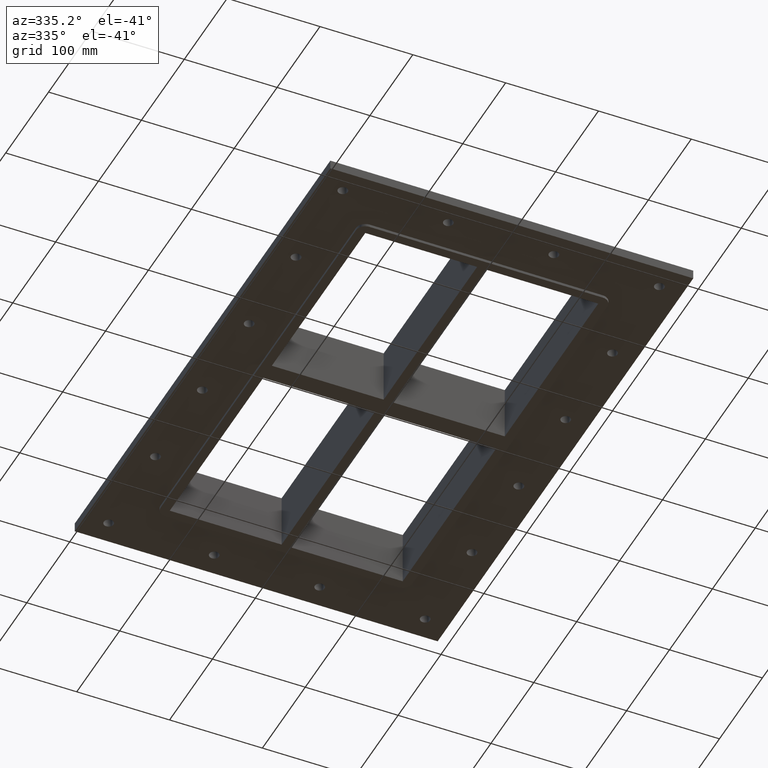
[diagram: clean part render]
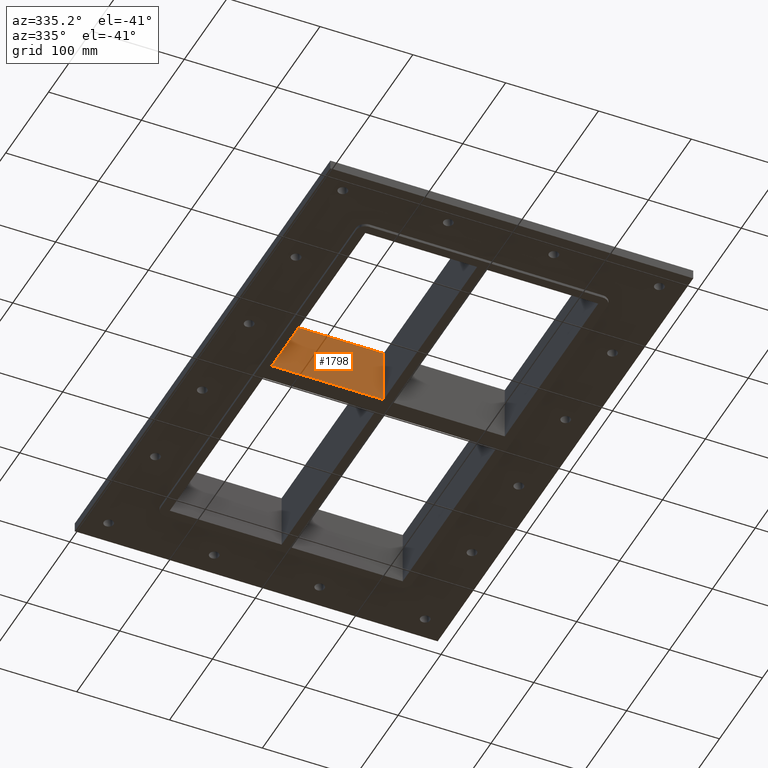
[diagram: same view with one face highlighted and labeled with its STEP entity id]
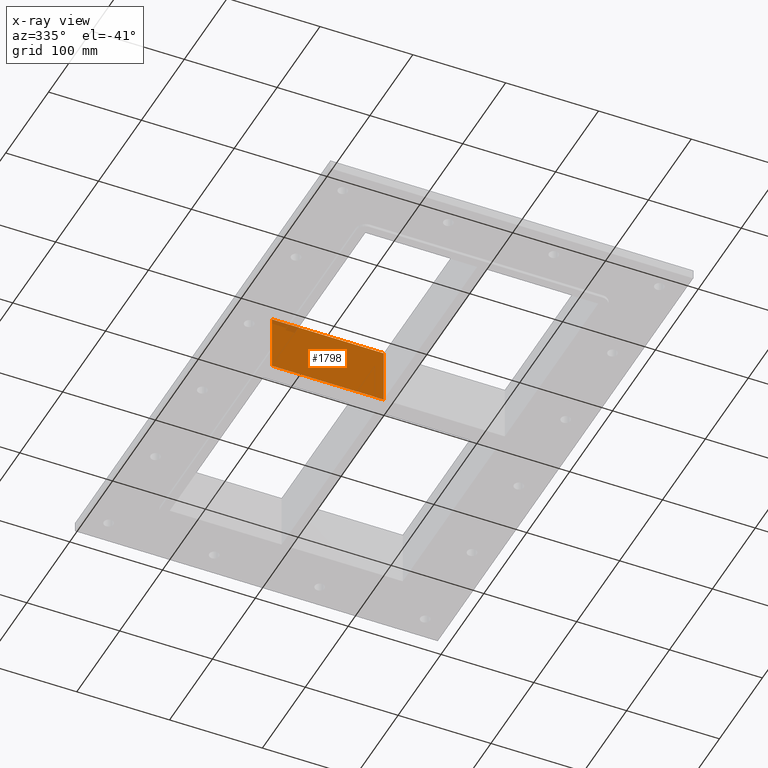
[diagram: x-ray of the same camera — body ghosted, the highlighted face saturated]
A machine part, auxiliary view. The second image highlights one B-rep face of the part: STEP entity #1798.
The next image is the same camera in x-ray: the body ghosted, the highlighted face saturated — about 3% of this face is hidden behind the body in this view.
In plain terms, the highlighted planar face has unit normal (0, 1, 0).
Its self-contained STEP definition (entity closure, byte-faithful):
#1274=CARTESIAN_POINT('',(-4.999999999999947,-10.000000000000036,-30.0));
#1275=VERTEX_POINT('',#1274);
#1282=CARTESIAN_POINT('',(-125.49999999999997,-10.000000000000052,-30.0));
#1283=VERTEX_POINT('',#1282);
#1284=CARTESIAN_POINT('',(-4.99999999999995,-10.000000000000037,-30.0));
#1285=DIRECTION('',(-1.0,0.0,0.0));
#1286=VECTOR('',#1285,120.50000000000003);
#1287=LINE('',#1284,#1286);
#1288=EDGE_CURVE('',#1275,#1283,#1287,.T.);
#1709=CARTESIAN_POINT('',(-125.49999999999997,-10.000000000000052,30.0));
#1710=VERTEX_POINT('',#1709);
#1711=CARTESIAN_POINT('',(-125.49999999999997,-10.000000000000052,30.0));
#1712=DIRECTION('',(0.0,0.0,-1.0));
#1713=VECTOR('',#1712,60.0);
#1714=LINE('',#1711,#1713);
#1715=EDGE_CURVE('',#1710,#1283,#1714,.T.);
#1765=CARTESIAN_POINT('',(-4.999999999999947,-10.000000000000036,30.0));
#1766=VERTEX_POINT('',#1765);
#1773=CARTESIAN_POINT('',(-4.999999999999947,-10.000000000000036,30.0));
#1774=DIRECTION('',(0.0,0.0,-1.0));
#1775=VECTOR('',#1774,60.0);
#1776=LINE('',#1773,#1775);
#1777=EDGE_CURVE('',#1766,#1275,#1776,.T.);
#1782=CARTESIAN_POINT('',(-125.49999999999997,-10.000000000000052,30.0));
#1783=DIRECTION('',(0.0,1.0,0.0));
#1784=DIRECTION('',(1.0,0.0,0.0));
#1785=AXIS2_PLACEMENT_3D('',#1782,#1783,#1784);
#1786=PLANE('',#1785);
#1787=ORIENTED_EDGE('',*,*,#1288,.F.);
#1788=ORIENTED_EDGE('',*,*,#1777,.F.);
#1789=CARTESIAN_POINT('',(-125.49999999999997,-10.000000000000053,30.0));
#1790=DIRECTION('',(1.0,0.0,0.0));
#1791=VECTOR('',#1790,120.50000000000003);
#1792=LINE('',#1789,#1791);
#1793=EDGE_CURVE('',#1710,#1766,#1792,.T.);
#1794=ORIENTED_EDGE('',*,*,#1793,.F.);
#1795=ORIENTED_EDGE('',*,*,#1715,.T.);
#1796=EDGE_LOOP('',(#1787,#1788,#1794,#1795));
#1797=FACE_OUTER_BOUND('',#1796,.T.);
#1798=ADVANCED_FACE('',(#1797),#1786,.F.);